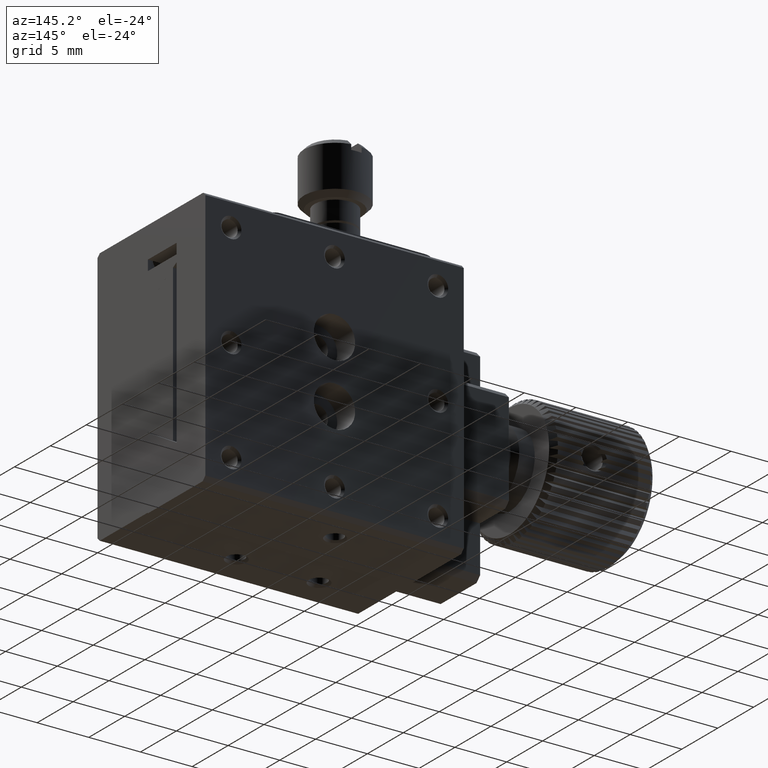
[diagram: clean part render]
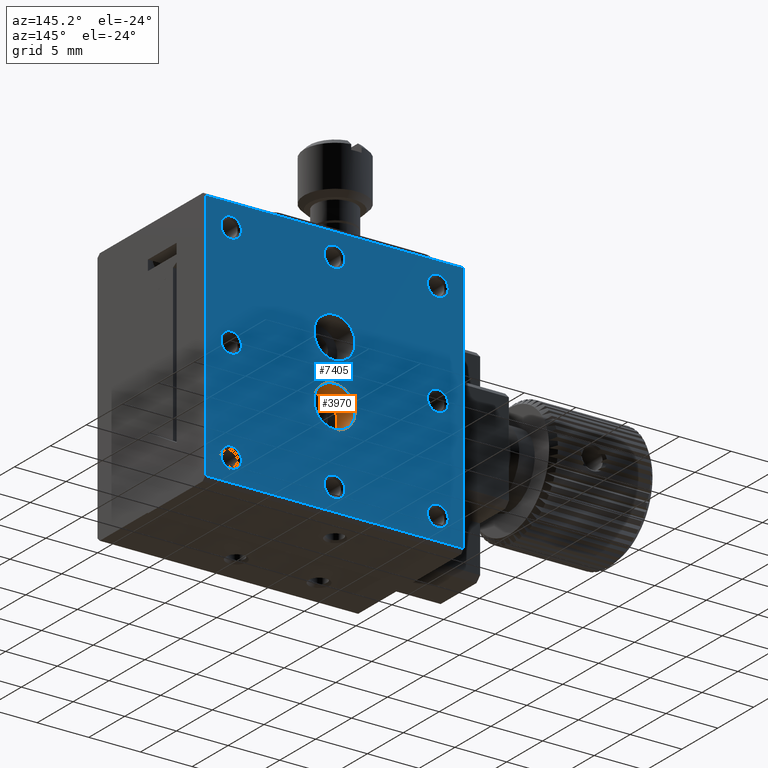
[diagram: same view with the hole feature highlighted: cylindrical wall and planar end face, labeled with their STEP entity ids]
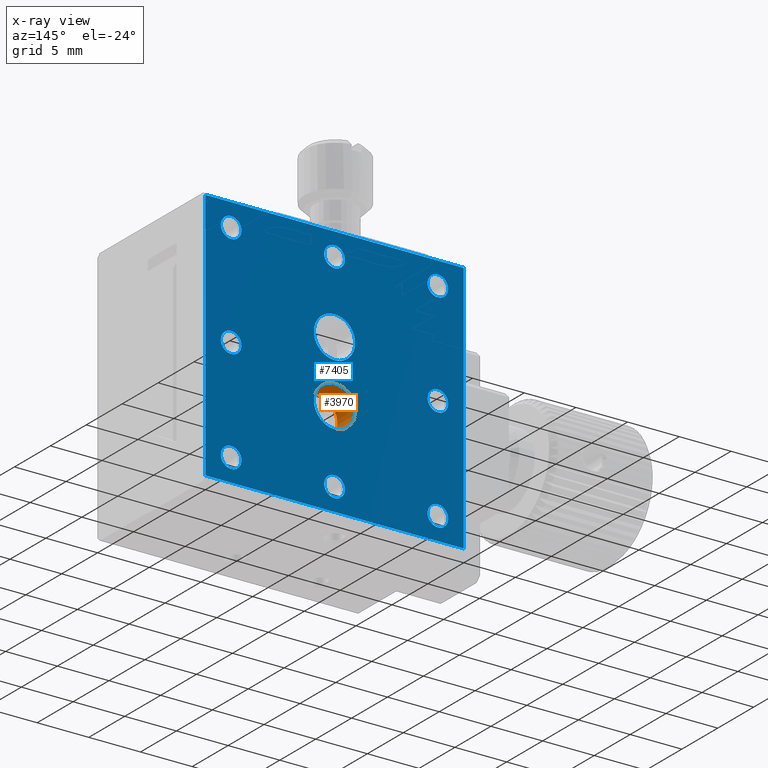
[diagram: x-ray of the same camera — body ghosted, the hole faces saturated]
A machine part, auxiliary view. The highlighted faces form one hole feature of diameter 4 mm: the cylindrical wall (entity #3970, orange) and its adjacent planar end face (entity #7405, blue) — they share a circular edge in the B-rep.
The next image is the same camera in x-ray (body ghosted, the hole faces saturated) — the bore reads through the body.
Wall:
#533 = VERTEX_POINT ( 'NONE', #11712 ) ;
#1169 = ORIENTED_EDGE ( 'NONE', *, *, #3299, .T. ) ;
#1417 = EDGE_CURVE ( 'NONE', #11513, #11513, #2597, .T. ) ;
#1797 = ORIENTED_EDGE ( 'NONE', *, *, #1417, .F. ) ;
#1876 = DIRECTION ( 'NONE',  ( -0.000000000000000000, 1.000000000000000000, -0.000000000000000000 ) ) ;
#2183 = AXIS2_PLACEMENT_3D ( 'NONE', #4945, #1876, #8746 ) ;
#2320 = DIRECTION ( 'NONE',  ( 0.000000000000000000, -1.000000000000000000, 0.000000000000000000 ) ) ;
#2597 = CIRCLE ( 'NONE', #4938, 2.000000000000001776 ) ;
#3299 = EDGE_CURVE ( 'NONE', #533, #533, #8516, .T. ) ;
#3970 = ADVANCED_FACE ( 'NONE', ( #12370, #11441 ), #4257, .F. ) ;
#4257 = CYLINDRICAL_SURFACE ( 'NONE', #7278, 2.000000000000001776 ) ;
#4938 = AXIS2_PLACEMENT_3D ( 'NONE', #8072, #7277, #10169 ) ;
#4945 = CARTESIAN_POINT ( 'NONE',  ( 12.50000000000000000, 15.00000000000000000, -15.50000000000000000 ) ) ;
#5525 = CARTESIAN_POINT ( 'NONE',  ( 12.50000000000000000, 7.399139380972439284, -15.50000000000000000 ) ) ;
#6311 = DIRECTION ( 'NONE',  ( 0.000000000000000000, 0.000000000000000000, -1.000000000000000000 ) ) ;
#7277 = DIRECTION ( 'NONE',  ( -0.000000000000000000, 1.000000000000000000, -0.000000000000000000 ) ) ;
#7278 = AXIS2_PLACEMENT_3D ( 'NONE', #5525, #2320, #6311 ) ;
#7557 = CARTESIAN_POINT ( 'NONE',  ( 12.50000000000000000, 12.50000000000000000, -17.50000000000000000 ) ) ;
#8072 = CARTESIAN_POINT ( 'NONE',  ( 12.50000000000000000, 12.50000000000000000, -15.50000000000000000 ) ) ;
#8212 = EDGE_LOOP ( 'NONE', ( #1797 ) ) ;
#8516 = CIRCLE ( 'NONE', #2183, 2.000000000000001776 ) ;
#8709 = EDGE_LOOP ( 'NONE', ( #1169 ) ) ;
#8746 = DIRECTION ( 'NONE',  ( 0.000000000000000000, 0.000000000000000000, -1.000000000000000000 ) ) ;
#10169 = DIRECTION ( 'NONE',  ( 0.000000000000000000, 0.000000000000000000, -1.000000000000000000 ) ) ;
#11441 = FACE_OUTER_BOUND ( 'NONE', #8212, .T. ) ;
#11513 = VERTEX_POINT ( 'NONE', #7557 ) ;
#11712 = CARTESIAN_POINT ( 'NONE',  ( 12.50000000000000000, 15.00000000000000000, -17.50000000000000000 ) ) ;
#12370 = FACE_OUTER_BOUND ( 'NONE', #8709, .T. ) ;
End face:
#65 = CARTESIAN_POINT ( 'NONE',  ( 2.500000000000000000, 15.00000000000000000, -1.500000000078216544 ) ) ;
#112 = EDGE_LOOP ( 'NONE', ( #3433 ) ) ;
#232 = ORIENTED_EDGE ( 'NONE', *, *, #12568, .F. ) ;
#258 = DIRECTION ( 'NONE',  ( -0.000000000000000000, 6.067341726462099832E-17, 1.000000000000000000 ) ) ;
#319 = VERTEX_POINT ( 'NONE', #7220 ) ;
#359 = ORIENTED_EDGE ( 'NONE', *, *, #2445, .F. ) ;
#369 = CIRCLE ( 'NONE', #7773, 0.9999999999968158804 ) ;
#392 = VERTEX_POINT ( 'NONE', #12426 ) ;
#408 = VERTEX_POINT ( 'NONE', #4456 ) ;
#453 = EDGE_LOOP ( 'NONE', ( #12770 ) ) ;
#482 = CIRCLE ( 'NONE', #5354, 2.000000000000000000 ) ;
#507 = DIRECTION ( 'NONE',  ( 0.000000000000000000, 0.000000000000000000, 1.000000000000000000 ) ) ;
#533 = VERTEX_POINT ( 'NONE', #11712 ) ;
#558 = DIRECTION ( 'NONE',  ( -0.000000000000000000, 1.000000000000000000, 0.000000000000000000 ) ) ;
#719 = CARTESIAN_POINT ( 'NONE',  ( 22.50000000000000000, 15.00000000000000000, -22.50000000000000000 ) ) ;
#760 = CARTESIAN_POINT ( 'NONE',  ( 2.500000000000000000, 15.00000000000000000, -12.50000000000000000 ) ) ;
#772 = CIRCLE ( 'NONE', #1405, 0.9999999999217834556 ) ;
#785 = VECTOR ( 'NONE', #5727, 1000.000000000000000 ) ;
#898 = AXIS2_PLACEMENT_3D ( 'NONE', #719, #10965, #4707 ) ;
#1100 = VECTOR ( 'NONE', #11258, 1000.000000000000000 ) ;
#1236 = VECTOR ( 'NONE', #258, 1000.000000000000000 ) ;
#1238 = EDGE_LOOP ( 'NONE', ( #4777 ) ) ;
#1282 = EDGE_CURVE ( 'NONE', #408, #408, #5146, .T. ) ;
#1372 = EDGE_CURVE ( 'NONE', #4258, #4258, #482, .T. ) ;
#1393 = ORIENTED_EDGE ( 'NONE', *, *, #8924, .F. ) ;
#1404 = FACE_BOUND ( 'NONE', #1238, .T. ) ;
#1405 = AXIS2_PLACEMENT_3D ( 'NONE', #4415, #558, #4346 ) ;
#1429 = AXIS2_PLACEMENT_3D ( 'NONE', #2162, #6220, #10224 ) ;
#1475 = CARTESIAN_POINT ( 'NONE',  ( 25.00000000000000000, 14.99999999999999822, -24.69999999999999929 ) ) ;
#1613 = EDGE_LOOP ( 'NONE', ( #12814 ) ) ;
#1682 = ORIENTED_EDGE ( 'NONE', *, *, #9323, .F. ) ;
#1876 = DIRECTION ( 'NONE',  ( -0.000000000000000000, 1.000000000000000000, -0.000000000000000000 ) ) ;
#1885 = VERTEX_POINT ( 'NONE', #6212 ) ;
#1942 = DIRECTION ( 'NONE',  ( -0.000000000000000000, 1.000000000000000000, 0.000000000000000000 ) ) ;
#2005 = EDGE_LOOP ( 'NONE', ( #4154 ) ) ;
#2162 = CARTESIAN_POINT ( 'NONE',  ( 2.500000000000000000, 15.00000000000000000, -2.500000000000000000 ) ) ;
#2183 = AXIS2_PLACEMENT_3D ( 'NONE', #4945, #1876, #8746 ) ;
#2424 = CARTESIAN_POINT ( 'NONE',  ( 12.50000000000000000, 15.00000000000000000, -22.50000000000000000 ) ) ;
#2445 = EDGE_CURVE ( 'NONE', #10271, #12280, #5537, .T. ) ;
#2495 = CARTESIAN_POINT ( 'NONE',  ( 22.50000000000000000, 15.00000000000000000, -2.500000000000000000 ) ) ;
#2535 = FACE_BOUND ( 'NONE', #4602, .T. ) ;
#2561 = DIRECTION ( 'NONE',  ( -0.000000000000000000, 1.000000000000000000, 0.000000000000000000 ) ) ;
#3299 = EDGE_CURVE ( 'NONE', #533, #533, #8516, .T. ) ;
#3317 = CIRCLE ( 'NONE', #4791, 0.9999999999217834556 ) ;
#3433 = ORIENTED_EDGE ( 'NONE', *, *, #7238, .F. ) ;
#3473 = FACE_BOUND ( 'NONE', #2005, .T. ) ;
#3533 = AXIS2_PLACEMENT_3D ( 'NONE', #1475, #4662, #3670 ) ;
#3670 = DIRECTION ( 'NONE',  ( 0.000000000000000000, -6.067341726462099832E-17, -1.000000000000000000 ) ) ;
#3678 = EDGE_LOOP ( 'NONE', ( #1393, #7236, #1682, #359 ) ) ;
#3786 = CARTESIAN_POINT ( 'NONE',  ( 22.50000000000000000, 15.00000000000000000, -11.50000000001227818 ) ) ;
#4154 = ORIENTED_EDGE ( 'NONE', *, *, #8392, .F. ) ;
#4258 = VERTEX_POINT ( 'NONE', #12503 ) ;
#4346 = DIRECTION ( 'NONE',  ( 0.000000000000000000, 0.000000000000000000, 1.000000000000000000 ) ) ;
#4415 = CARTESIAN_POINT ( 'NONE',  ( 12.50000000000000000, 15.00000000000000000, -2.500000000000000000 ) ) ;
#4440 = VERTEX_POINT ( 'NONE', #6230 ) ;
#4456 = CARTESIAN_POINT ( 'NONE',  ( 22.50000000000000000, 15.00000000000000000, -21.50000000000318323 ) ) ;
#4488 = DIRECTION ( 'NONE',  ( -0.000000000000000000, 1.000000000000000000, 0.000000000000000000 ) ) ;
#4529 = CARTESIAN_POINT ( 'NONE',  ( 25.00000000000000000, 15.00000000000000000, -0.2999999999999831690 ) ) ;
#4596 = EDGE_CURVE ( 'NONE', #12832, #12832, #10862, .T. ) ;
#4602 = EDGE_LOOP ( 'NONE', ( #10371 ) ) ;
#4608 = LINE ( 'NONE', #12662, #11756 ) ;
#4662 = DIRECTION ( 'NONE',  ( 0.000000000000000000, -1.000000000000000000, 6.067341726462099832E-17 ) ) ;
#4707 = DIRECTION ( 'NONE',  ( 0.000000000000000000, 0.000000000000000000, 1.000000000000000000 ) ) ;
#4777 = ORIENTED_EDGE ( 'NONE', *, *, #12438, .F. ) ;
#4791 = AXIS2_PLACEMENT_3D ( 'NONE', #2495, #4488, #10614 ) ;
#4945 = CARTESIAN_POINT ( 'NONE',  ( 12.50000000000000000, 15.00000000000000000, -15.50000000000000000 ) ) ;
#5146 = CIRCLE ( 'NONE', #898, 0.9999999999968158804 ) ;
#5264 = ORIENTED_EDGE ( 'NONE', *, *, #3299, .F. ) ;
#5310 = CARTESIAN_POINT ( 'NONE',  ( 12.50000000000000000, 15.00000000000000000, -1.500000000078216544 ) ) ;
#5354 = AXIS2_PLACEMENT_3D ( 'NONE', #6166, #9299, #11090 ) ;
#5470 = FACE_BOUND ( 'NONE', #6395, .T. ) ;
#5537 = LINE ( 'NONE', #7245, #1100 ) ;
#5666 = FACE_BOUND ( 'NONE', #1613, .T. ) ;
#5702 = DIRECTION ( 'NONE',  ( 0.000000000000000000, 0.000000000000000000, 1.000000000000000000 ) ) ;
#5719 = CARTESIAN_POINT ( 'NONE',  ( 0.000000000000000000, 15.00000000000000000, -0.2999999999999834466 ) ) ;
#5727 = DIRECTION ( 'NONE',  ( 1.000000000000000000, 0.000000000000000000, 0.000000000000000000 ) ) ;
#5749 = DIRECTION ( 'NONE',  ( -0.000000000000000000, 1.000000000000000000, 0.000000000000000000 ) ) ;
#5922 = AXIS2_PLACEMENT_3D ( 'NONE', #760, #5749, #12798 ) ;
#5929 = AXIS2_PLACEMENT_3D ( 'NONE', #11136, #1942, #10266 ) ;
#6027 = AXIS2_PLACEMENT_3D ( 'NONE', #12745, #12810, #5702 ) ;
#6166 = CARTESIAN_POINT ( 'NONE',  ( 12.50000000000000000, 15.00000000000000000, -9.500000000000000000 ) ) ;
#6212 = CARTESIAN_POINT ( 'NONE',  ( 25.00000000000000000, 14.99999999999999645, -24.69999999999999929 ) ) ;
#6220 = DIRECTION ( 'NONE',  ( -0.000000000000000000, 1.000000000000000000, 0.000000000000000000 ) ) ;
#6230 = CARTESIAN_POINT ( 'NONE',  ( 2.500000000000000000, 15.00000000000000000, -21.50000000000318323 ) ) ;
#6366 = CARTESIAN_POINT ( 'NONE',  ( 25.00000000000000000, 14.99999999999999822, -24.69999999999999929 ) ) ;
#6395 = EDGE_LOOP ( 'NONE', ( #8892 ) ) ;
#6525 = FACE_BOUND ( 'NONE', #112, .T. ) ;
#6585 = FACE_BOUND ( 'NONE', #7130, .T. ) ;
#6713 = FACE_BOUND ( 'NONE', #453, .T. ) ;
#6763 = CIRCLE ( 'NONE', #5929, 0.9999999999968158804 ) ;
#7022 = VERTEX_POINT ( 'NONE', #11173 ) ;
#7130 = EDGE_LOOP ( 'NONE', ( #232 ) ) ;
#7220 = CARTESIAN_POINT ( 'NONE',  ( 12.50000000000000000, 15.00000000000000000, -21.50000000000318323 ) ) ;
#7236 = ORIENTED_EDGE ( 'NONE', *, *, #10575, .F. ) ;
#7238 = EDGE_CURVE ( 'NONE', #7022, #7022, #3317, .T. ) ;
#7245 = CARTESIAN_POINT ( 'NONE',  ( 0.000000000000000000, 14.99999999999999822, -24.69999999999999929 ) ) ;
#7379 = CIRCLE ( 'NONE', #5922, 0.9999999999877224877 ) ;
#7405 = ADVANCED_FACE ( 'NONE', ( #8614, #3473, #5470, #6525, #6713, #10528, #2535, #6585, #1404, #5666, #10592 ), #8732, .F. ) ;
#7406 = VERTEX_POINT ( 'NONE', #4529 ) ;
#7675 = EDGE_LOOP ( 'NONE', ( #10535 ) ) ;
#7773 = AXIS2_PLACEMENT_3D ( 'NONE', #2424, #2561, #507 ) ;
#8392 = EDGE_CURVE ( 'NONE', #10175, #10175, #9235, .T. ) ;
#8516 = CIRCLE ( 'NONE', #2183, 2.000000000000001776 ) ;
#8614 = FACE_OUTER_BOUND ( 'NONE', #3678, .T. ) ;
#8732 = PLANE ( 'NONE',  #3533 ) ;
#8746 = DIRECTION ( 'NONE',  ( 0.000000000000000000, 0.000000000000000000, -1.000000000000000000 ) ) ;
#8892 = ORIENTED_EDGE ( 'NONE', *, *, #8917, .F. ) ;
#8917 = EDGE_CURVE ( 'NONE', #12485, #12485, #772, .T. ) ;
#8924 = EDGE_CURVE ( 'NONE', #7406, #10271, #4608, .T. ) ;
#9235 = CIRCLE ( 'NONE', #1429, 0.9999999999217834556 ) ;
#9292 = CARTESIAN_POINT ( 'NONE',  ( 0.000000000000000000, 14.99999999999999645, -24.69999999999999929 ) ) ;
#9299 = DIRECTION ( 'NONE',  ( -0.000000000000000000, 1.000000000000000000, -0.000000000000000000 ) ) ;
#9323 = EDGE_CURVE ( 'NONE', #12280, #1885, #9525, .T. ) ;
#9525 = LINE ( 'NONE', #12578, #785 ) ;
#9887 = EDGE_LOOP ( 'NONE', ( #5264 ) ) ;
#10175 = VERTEX_POINT ( 'NONE', #65 ) ;
#10224 = DIRECTION ( 'NONE',  ( 0.000000000000000000, 0.000000000000000000, 1.000000000000000000 ) ) ;
#10266 = DIRECTION ( 'NONE',  ( 0.000000000000000000, 0.000000000000000000, 1.000000000000000000 ) ) ;
#10271 = VERTEX_POINT ( 'NONE', #5719 ) ;
#10371 = ORIENTED_EDGE ( 'NONE', *, *, #11132, .F. ) ;
#10528 = FACE_BOUND ( 'NONE', #7675, .T. ) ;
#10535 = ORIENTED_EDGE ( 'NONE', *, *, #1282, .F. ) ;
#10539 = DIRECTION ( 'NONE',  ( -1.000000000000000000, -0.000000000000000000, -0.000000000000000000 ) ) ;
#10575 = EDGE_CURVE ( 'NONE', #1885, #7406, #11174, .T. ) ;
#10592 = FACE_BOUND ( 'NONE', #9887, .T. ) ;
#10614 = DIRECTION ( 'NONE',  ( 0.000000000000000000, 0.000000000000000000, 1.000000000000000000 ) ) ;
#10862 = CIRCLE ( 'NONE', #6027, 0.9999999999877224877 ) ;
#10965 = DIRECTION ( 'NONE',  ( -0.000000000000000000, 1.000000000000000000, 0.000000000000000000 ) ) ;
#11090 = DIRECTION ( 'NONE',  ( 0.000000000000000000, 0.000000000000000000, -1.000000000000000000 ) ) ;
#11132 = EDGE_CURVE ( 'NONE', #319, #319, #369, .T. ) ;
#11136 = CARTESIAN_POINT ( 'NONE',  ( 2.500000000000000000, 15.00000000000000000, -22.50000000000000000 ) ) ;
#11173 = CARTESIAN_POINT ( 'NONE',  ( 22.50000000000000000, 15.00000000000000000, -1.500000000078216544 ) ) ;
#11174 = LINE ( 'NONE', #6366, #1236 ) ;
#11258 = DIRECTION ( 'NONE',  ( 0.000000000000000000, -6.067341726462099832E-17, -1.000000000000000000 ) ) ;
#11712 = CARTESIAN_POINT ( 'NONE',  ( 12.50000000000000000, 15.00000000000000000, -17.50000000000000000 ) ) ;
#11756 = VECTOR ( 'NONE', #10539, 1000.000000000000000 ) ;
#12280 = VERTEX_POINT ( 'NONE', #9292 ) ;
#12426 = CARTESIAN_POINT ( 'NONE',  ( 2.500000000000000000, 15.00000000000000000, -11.50000000001227818 ) ) ;
#12438 = EDGE_CURVE ( 'NONE', #392, #392, #7379, .T. ) ;
#12485 = VERTEX_POINT ( 'NONE', #5310 ) ;
#12503 = CARTESIAN_POINT ( 'NONE',  ( 12.50000000000000000, 15.00000000000000000, -11.50000000000000000 ) ) ;
#12568 = EDGE_CURVE ( 'NONE', #4440, #4440, #6763, .T. ) ;
#12578 = CARTESIAN_POINT ( 'NONE',  ( 25.00000000000000000, 14.99999999999999822, -24.69999999999999929 ) ) ;
#12662 = CARTESIAN_POINT ( 'NONE',  ( 25.00000000000000000, 15.00000000000000000, -0.2999999999999842792 ) ) ;
#12745 = CARTESIAN_POINT ( 'NONE',  ( 22.50000000000000000, 15.00000000000000000, -12.50000000000000000 ) ) ;
#12770 = ORIENTED_EDGE ( 'NONE', *, *, #4596, .F. ) ;
#12798 = DIRECTION ( 'NONE',  ( 0.000000000000000000, 0.000000000000000000, 1.000000000000000000 ) ) ;
#12810 = DIRECTION ( 'NONE',  ( -0.000000000000000000, 1.000000000000000000, 0.000000000000000000 ) ) ;
#12814 = ORIENTED_EDGE ( 'NONE', *, *, #1372, .F. ) ;
#12832 = VERTEX_POINT ( 'NONE', #3786 ) ;